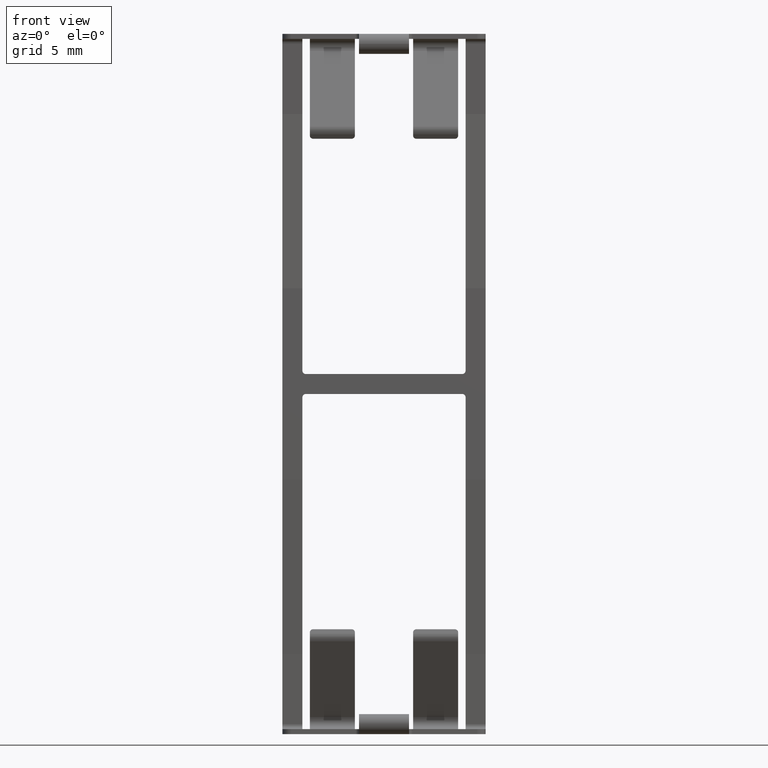
[diagram: clean part render]
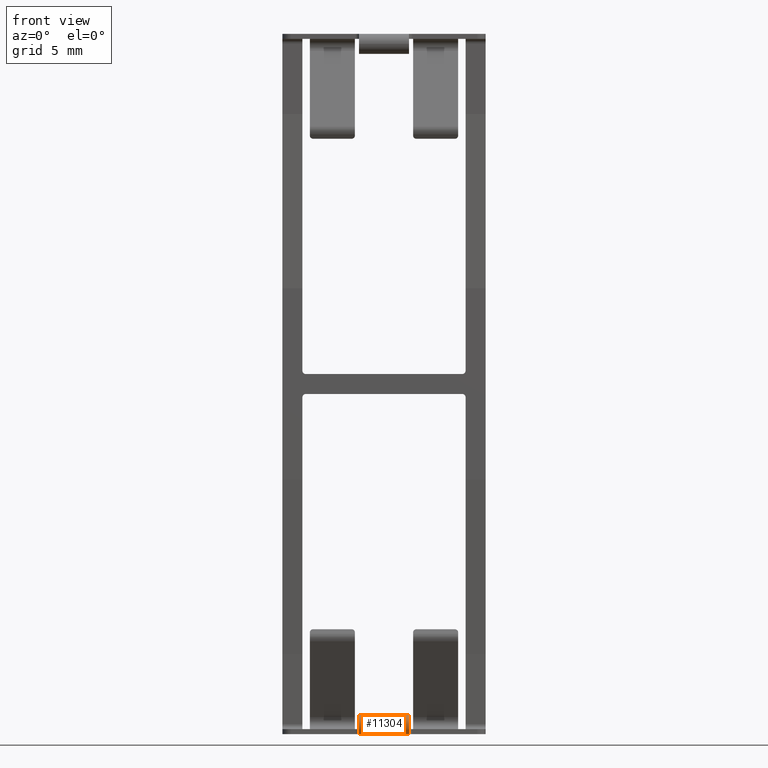
[diagram: same view with one face highlighted and labeled with its STEP entity id]
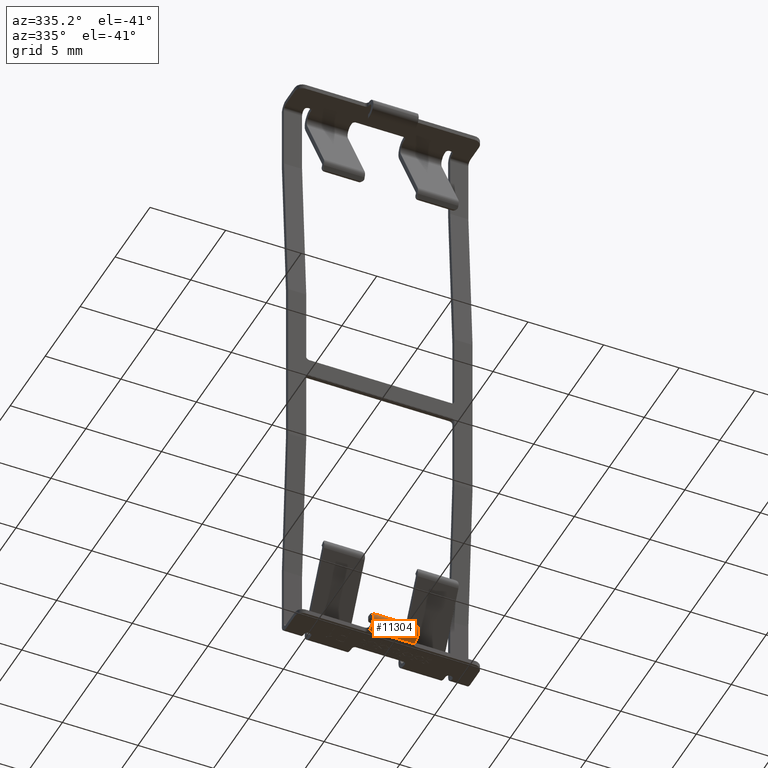
[diagram: same view with one face highlighted and labeled with its STEP entity id]
A machine part, front view. The second image highlights one B-rep face of the part: STEP entity #11304.
A second angle (auxiliary view) of the same face is appended — the face is thin or edge-on in the first view.
In plain terms, the highlighted cylindrical surface (edge-blend (fillet) strip) has radius 0.6 mm, axis along (1, 0, 0).
Its self-contained STEP definition (entity closure, byte-faithful):
#130 = CARTESIAN_POINT ( 'NONE',  ( 6.099999999999998757, 0.2999999999999877764, -42.05000000000000426 ) ) ;
#423 = EDGE_CURVE ( 'NONE', #8579, #3563, #1622, .T. ) ;
#564 = DIRECTION ( 'NONE',  ( -1.000000000000000000, -2.069098918964206559E-17, -5.927885630549117765E-19 ) ) ;
#898 = DIRECTION ( 'NONE',  ( 0.0000000000000000000, 0.0000000000000000000, -1.000000000000000000 ) ) ;
#1209 = AXIS2_PLACEMENT_3D ( 'NONE', #10333, #4211, #6861 ) ;
#1273 = CARTESIAN_POINT ( 'NONE',  ( -1.500000000000001332, 0.2999999999999721223, -40.85000000000003695 ) ) ;
#1462 = LINE ( 'NONE', #4723, #2939 ) ;
#1622 = LINE ( 'NONE', #130, #4080 ) ;
#2081 = CARTESIAN_POINT ( 'NONE',  ( 1.499999999999998668, 0.2999999999999877764, -42.05000000000000426 ) ) ;
#2182 = AXIS2_PLACEMENT_3D ( 'NONE', #2271, #10178, #6722 ) ;
#2271 = CARTESIAN_POINT ( 'NONE',  ( -1.500000000000001332, 0.2999999999999808376, -41.45000000000004547 ) ) ;
#2422 = ORIENTED_EDGE ( 'NONE', *, *, #423, .F. ) ;
#2459 = EDGE_LOOP ( 'NONE', ( #2422, #7391, #7990, #11336 ) ) ;
#2900 = EDGE_CURVE ( 'NONE', #6866, #10636, #1462, .T. ) ;
#2939 = VECTOR ( 'NONE', #564, 1000.000000000000000 ) ;
#3087 = FACE_OUTER_BOUND ( 'NONE', #2459, .T. ) ;
#3563 = VERTEX_POINT ( 'NONE', #5938 ) ;
#4080 = VECTOR ( 'NONE', #10656, 1000.000000000000000 ) ;
#4211 = DIRECTION ( 'NONE',  ( 1.000000000000000000, 0.0000000000000000000, 0.0000000000000000000 ) ) ;
#4328 = CIRCLE ( 'NONE', #9305, 0.6000000000000033085 ) ;
#4723 = CARTESIAN_POINT ( 'NONE',  ( 6.099999999999998757, 0.3000000000000063172, -40.85000000000002274 ) ) ;
#5938 = CARTESIAN_POINT ( 'NONE',  ( -1.500000000000000444, 0.2999999999999947153, -42.04999999999999716 ) ) ;
#6722 = DIRECTION ( 'NONE',  ( 0.0000000000000000000, 0.0000000000000000000, -1.000000000000000000 ) ) ;
#6803 = EDGE_CURVE ( 'NONE', #10636, #3563, #11139, .T. ) ;
#6861 = DIRECTION ( 'NONE',  ( 0.0000000000000000000, 0.0000000000000000000, -1.000000000000000000 ) ) ;
#6866 = VERTEX_POINT ( 'NONE', #7818 ) ;
#7391 = ORIENTED_EDGE ( 'NONE', *, *, #10833, .T. ) ;
#7818 = CARTESIAN_POINT ( 'NONE',  ( 1.499999999999998668, 0.3000000000000201950, -40.85000000000002984 ) ) ;
#7990 = ORIENTED_EDGE ( 'NONE', *, *, #2900, .T. ) ;
#8579 = VERTEX_POINT ( 'NONE', #2081 ) ;
#8737 = CARTESIAN_POINT ( 'NONE',  ( 1.500000000000001332, 0.2999999999999808376, -41.45000000000004547 ) ) ;
#9305 = AXIS2_PLACEMENT_3D ( 'NONE', #8737, #10535, #898 ) ;
#10120 = CYLINDRICAL_SURFACE ( 'NONE', #1209, 0.6000000000000033085 ) ;
#10178 = DIRECTION ( 'NONE',  ( 1.000000000000000000, 0.0000000000000000000, 0.0000000000000000000 ) ) ;
#10333 = CARTESIAN_POINT ( 'NONE',  ( -45.52124498539486552, 0.2999999999999808376, -41.45000000000004547 ) ) ;
#10535 = DIRECTION ( 'NONE',  ( -1.000000000000000000, -0.0000000000000000000, -0.0000000000000000000 ) ) ;
#10636 = VERTEX_POINT ( 'NONE', #1273 ) ;
#10656 = DIRECTION ( 'NONE',  ( -1.000000000000000000, 2.069098918964204402E-17, 5.927885630556810892E-19 ) ) ;
#10833 = EDGE_CURVE ( 'NONE', #8579, #6866, #4328, .T. ) ;
#11139 = CIRCLE ( 'NONE', #2182, 0.6000000000000033085 ) ;
#11304 = ADVANCED_FACE ( 'NONE', ( #3087 ), #10120, .T. ) ;
#11336 = ORIENTED_EDGE ( 'NONE', *, *, #6803, .T. ) ;